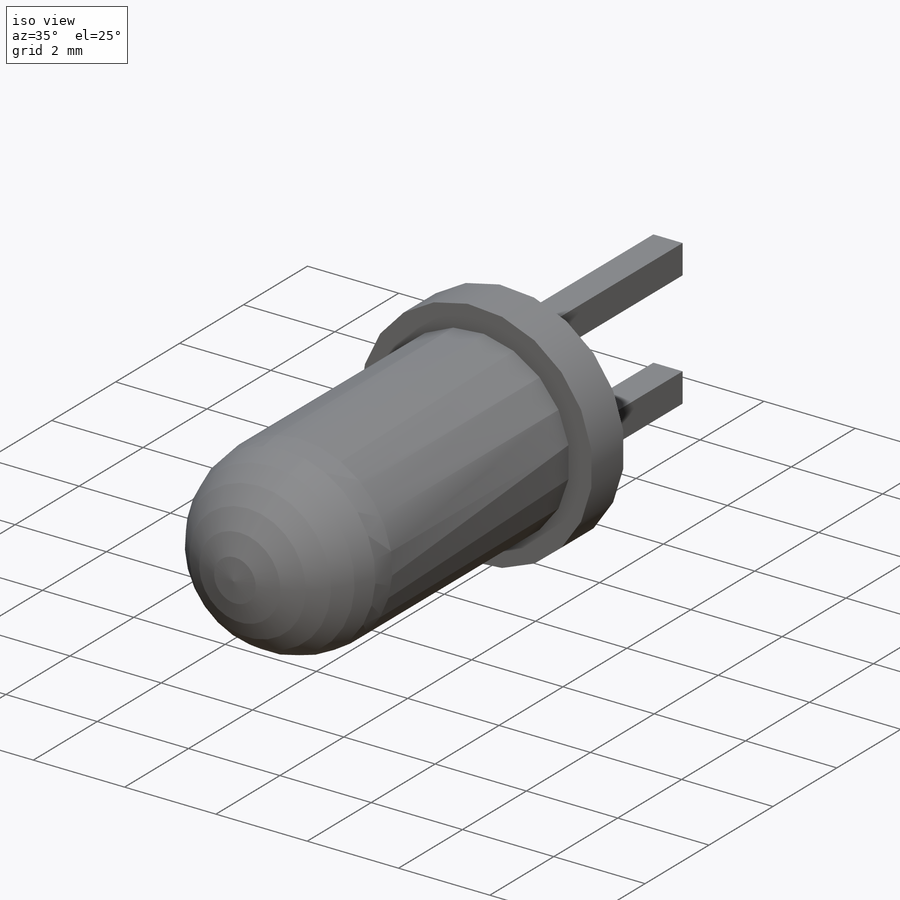
[diagram: iso view]
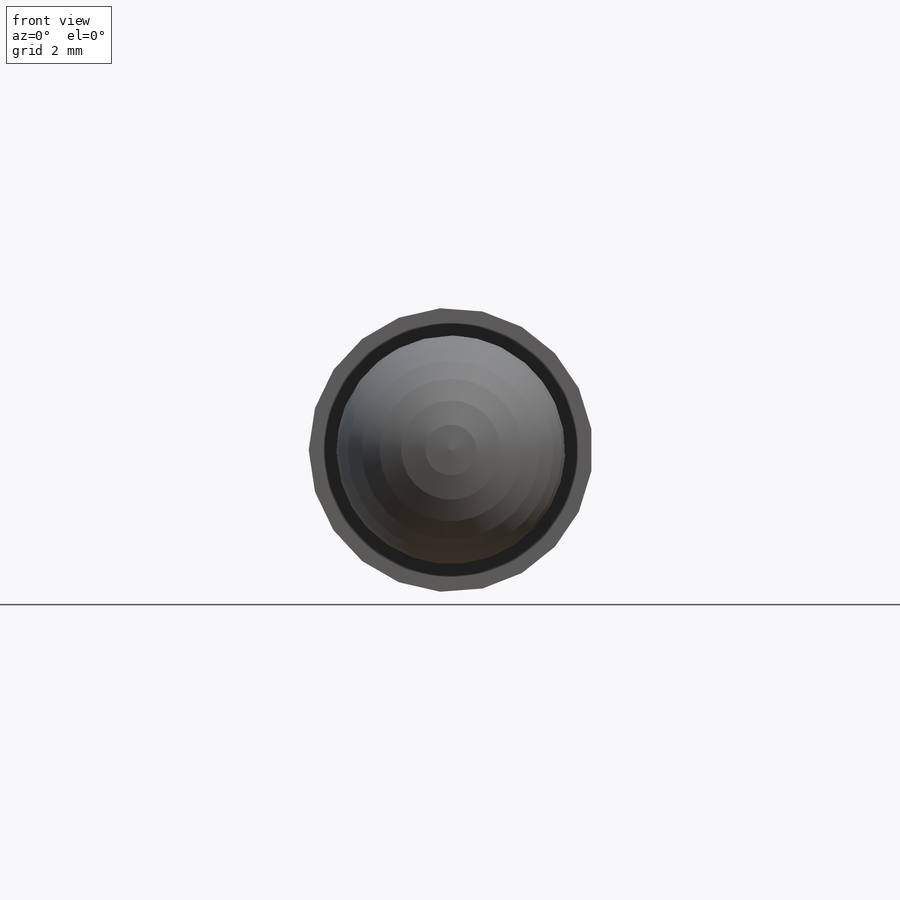
[diagram: front view]
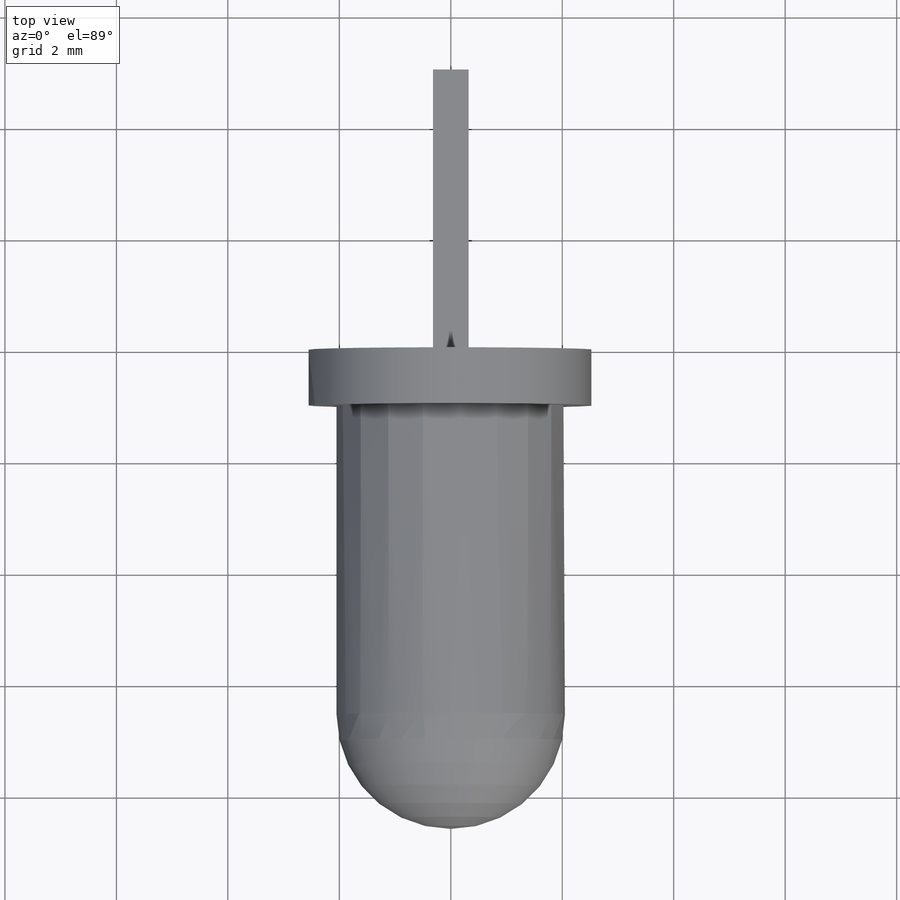
[diagram: top view]
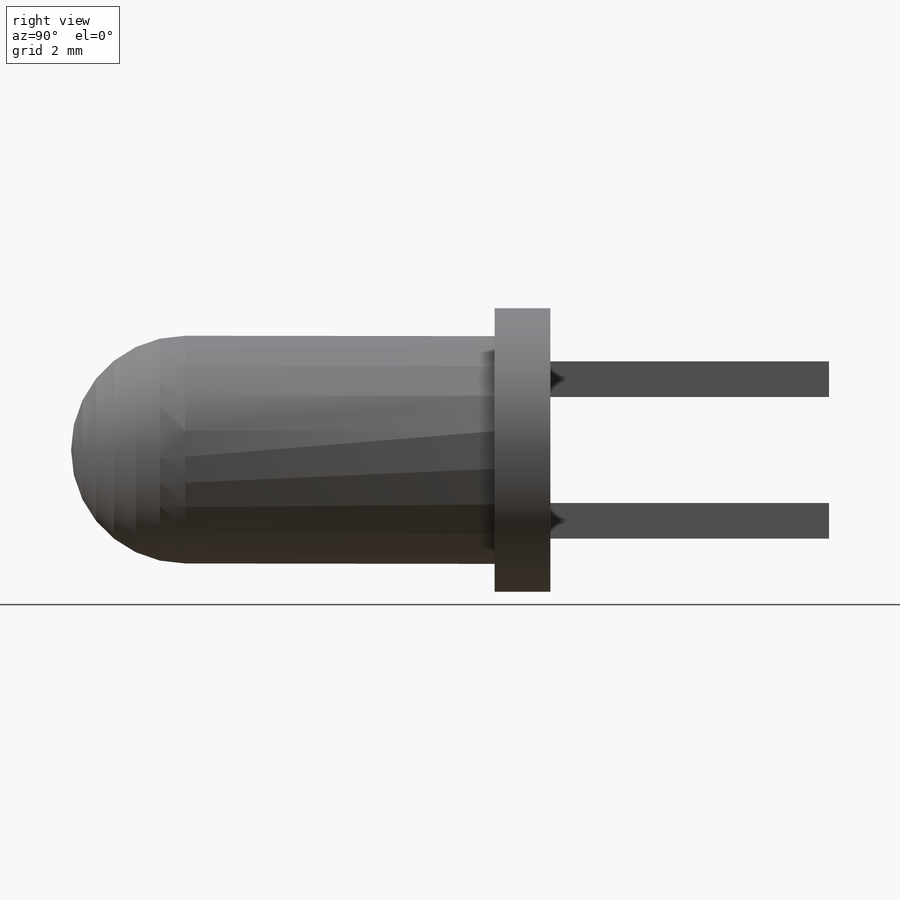
[diagram: right view]
SOLIDWORKS PART (.sldprt)
format: sldprt  version: not decoded by parser v0  size: 179,200 bytes
history: native  units: mm
features: sketch x3, material x1, revolve x1, extrude x1, plane x1 (+12 scaffold rows collapsed)
feature tree (19):
  scaffold x12  (default folders/planes/origin — collapsed)
  material  "Material <not specified>"
  sketch  "Sketch2"  dims[c1.D1=8.6mm c1.D2=5.1mm c1.D3=0.5mm c1.D4=1.0mm c2.D1=1.0mm c2.D4=8.6mm]
  revolve  "Base-Revolve"  Angle=360deg
  sketch  "Sketch3"  dims[c1.D2=~0.374679mm c1.D3=5.1mm c1.D1=2.54mm c2.D2=0.64mm]
  extrude  "Boss-Extrude1"  Depth=5mm
  plane  "Mounting Plane"  Offset=1.5mm
  sketch  "Component_Outline"  dims[D1=5.1mm]
decode coverage: 5 of 5 modeling features carry decoded parameters
note: ~ marks probable driven/reference dimensions
note: suppression state not decoded; provenance and decode notes live in map.json
